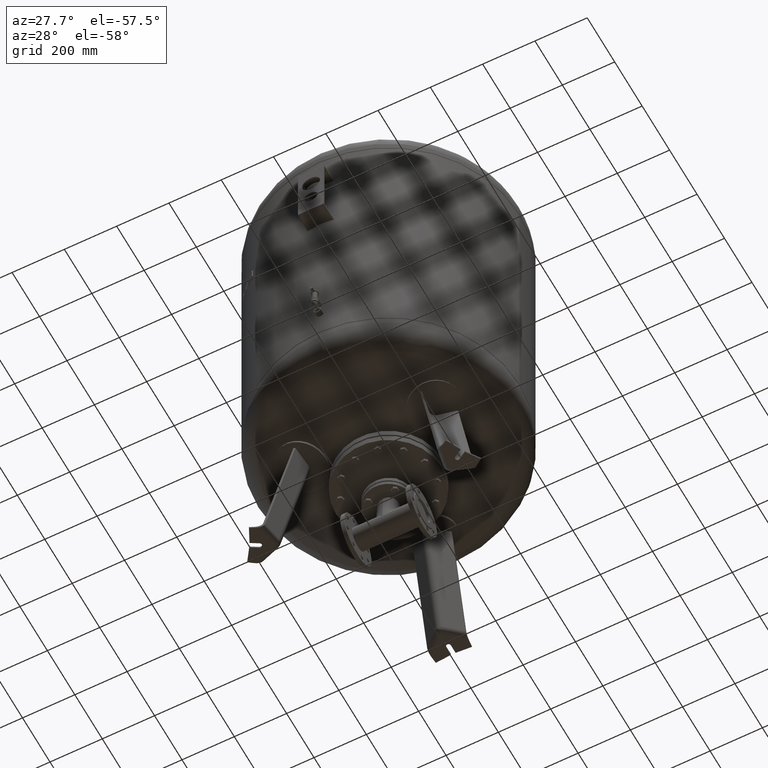
[diagram: clean part render]
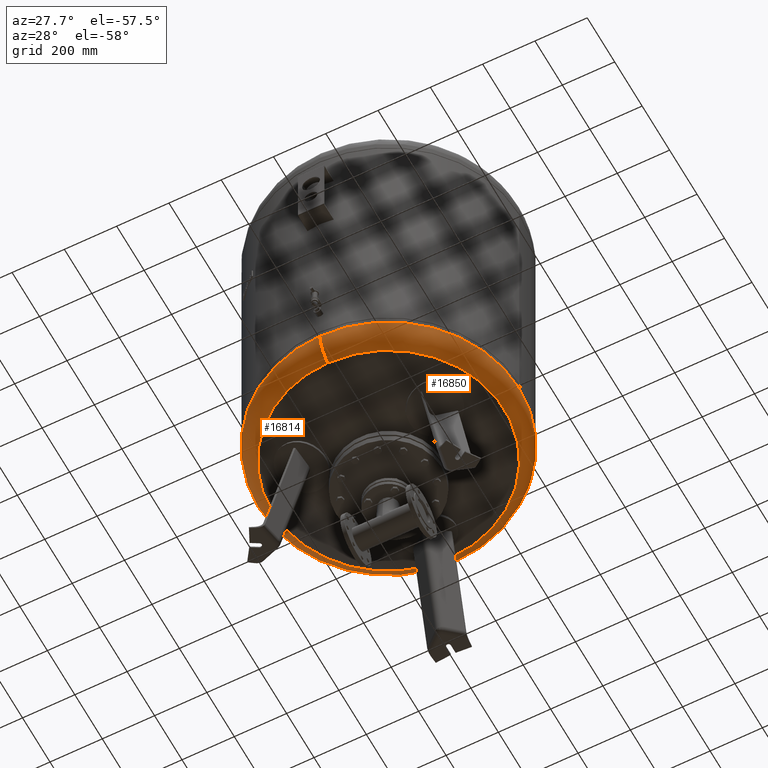
[diagram: same view with one multi-face feature highlighted, each face labeled with its STEP entity id]
A machine part, auxiliary view. The highlighted faces form ONE feature: a constant-radius fillet chain: 2 tangent blend faces with common blend radius 100.6 mm. The faces share edges in the B-rep.
Their STEP definitions:
[1] entity #16814 (Torus):
#16719=CARTESIAN_POINT('',(-500.0,-3.553717E-014,652.455355072719390));
#16720=VERTEX_POINT('',#16719);
#16744=CARTESIAN_POINT('',(-6.123032E-014,499.999999999999940,652.455355072719610));
#16745=VERTEX_POINT('',#16744);
#16753=CARTESIAN_POINT('',(-2.595210E-014,-3.553717E-014,652.455355072719500));
#16754=DIRECTION('',(0.0,0.0,1.0));
#16755=DIRECTION('',(-1.0,0.0,0.0));
#16756=AXIS2_PLACEMENT_3D('',#16753,#16754,#16755);
#16757=CIRCLE('',#16756,500.0);
#16758=EDGE_CURVE('',#16745,#16720,#16757,.T.);
#16763=CARTESIAN_POINT('',(0.0,-3.553717E-014,652.455355072719610));
#16764=DIRECTION('',(-1.341503E-016,-1.836970E-016,1.0));
#16765=DIRECTION('',(0.0,-1.0,0.0));
#16766=AXIS2_PLACEMENT_3D('',#16763,#16764,#16765);
#16767=TOROIDAL_SURFACE('',#16766,399.399999999999920,100.600000000000010);
#16768=CARTESIAN_POINT('',(3.381269E-030,-500.000000000000060,652.455355072719390));
#16769=VERTEX_POINT('',#16768);
#16770=CARTESIAN_POINT('',(1.211146E-014,-443.777777777777600,562.172616747466120));
#16771=VERTEX_POINT('',#16770);
#16772=CARTESIAN_POINT('',(0.0,-399.399999999999980,652.455355072719500));
#16773=DIRECTION('',(1.0,0.0,0.0));
#16774=DIRECTION('',(0.0,-1.0,0.0));
#16775=AXIS2_PLACEMENT_3D('',#16772,#16773,#16774);
#16776=CIRCLE('',#16775,100.600000000000010);
#16777=EDGE_CURVE('',#16769,#16771,#16776,.T.);
#16778=ORIENTED_EDGE('',*,*,#16777,.F.);
#16779=CARTESIAN_POINT('',(-2.595210E-014,-3.553717E-014,652.455355072719500));
#16780=DIRECTION('',(0.0,0.0,1.0));
#16781=DIRECTION('',(-1.0,0.0,0.0));
#16782=AXIS2_PLACEMENT_3D('',#16779,#16780,#16781);
#16783=CIRCLE('',#16782,500.0);
#16784=EDGE_CURVE('',#16720,#16769,#16783,.T.);
#16785=ORIENTED_EDGE('',*,*,#16784,.F.);
#16786=ORIENTED_EDGE('',*,*,#16758,.F.);
#16787=CARTESIAN_POINT('',(-4.223385E-014,443.777777777777600,562.172616747466350));
#16788=VERTEX_POINT('',#16787);
#16789=CARTESIAN_POINT('',(-4.891078E-014,399.399999999999860,652.455355072719730));
#16790=DIRECTION('',(-1.0,0.0,0.0));
#16791=DIRECTION('',(0.0,1.0,0.0));
#16792=AXIS2_PLACEMENT_3D('',#16789,#16790,#16791);
#16793=CIRCLE('',#16792,100.600000000000010);
#16794=EDGE_CURVE('',#16745,#16788,#16793,.T.);
#16795=ORIENTED_EDGE('',*,*,#16794,.T.);
#16796=CARTESIAN_POINT('',(-443.777777777777600,-1.895250E-014,562.172616747466240));
#16797=VERTEX_POINT('',#16796);
#16798=CARTESIAN_POINT('',(-1.384064E-014,-1.895250E-014,562.172616747466240));
#16799=DIRECTION('',(0.0,0.0,1.0));
#16800=DIRECTION('',(-1.0,0.0,0.0));
#16801=AXIS2_PLACEMENT_3D('',#16798,#16799,#16800);
#16802=CIRCLE('',#16801,443.777777777777600);
#16803=EDGE_CURVE('',#16788,#16797,#16802,.T.);
#16804=ORIENTED_EDGE('',*,*,#16803,.T.);
#16805=CARTESIAN_POINT('',(-1.384064E-014,-1.895250E-014,562.172616747466240));
#16806=DIRECTION('',(0.0,0.0,1.0));
#16807=DIRECTION('',(-1.0,0.0,0.0));
#16808=AXIS2_PLACEMENT_3D('',#16805,#16806,#16807);
#16809=CIRCLE('',#16808,443.777777777777600);
#16810=EDGE_CURVE('',#16797,#16771,#16809,.T.);
#16811=ORIENTED_EDGE('',*,*,#16810,.T.);
#16812=EDGE_LOOP('',(#16778,#16785,#16786,#16795,#16804,#16811));
#16813=FACE_OUTER_BOUND('',#16812,.T.);
#16814=ADVANCED_FACE('',(#16813),#16767,.T.);
[2] entity #16850 (Torus):
#16736=CARTESIAN_POINT('',(500.0,2.569315E-014,652.455355072719500));
#16737=VERTEX_POINT('',#16736);
#16744=CARTESIAN_POINT('',(-6.123032E-014,499.999999999999940,652.455355072719610));
#16745=VERTEX_POINT('',#16744);
#16746=CARTESIAN_POINT('',(-2.595210E-014,-3.553717E-014,652.455355072719500));
#16747=DIRECTION('',(0.0,0.0,1.0));
#16748=DIRECTION('',(-1.0,0.0,0.0));
#16749=AXIS2_PLACEMENT_3D('',#16746,#16747,#16748);
#16750=CIRCLE('',#16749,500.0);
#16751=EDGE_CURVE('',#16737,#16745,#16750,.T.);
#16768=CARTESIAN_POINT('',(3.381269E-030,-500.000000000000060,652.455355072719390));
#16769=VERTEX_POINT('',#16768);
#16770=CARTESIAN_POINT('',(1.211146E-014,-443.777777777777600,562.172616747466120));
#16771=VERTEX_POINT('',#16770);
#16772=CARTESIAN_POINT('',(0.0,-399.399999999999980,652.455355072719500));
#16773=DIRECTION('',(1.0,0.0,0.0));
#16774=DIRECTION('',(0.0,-1.0,0.0));
#16775=AXIS2_PLACEMENT_3D('',#16772,#16773,#16774);
#16776=CIRCLE('',#16775,100.600000000000010);
#16777=EDGE_CURVE('',#16769,#16771,#16776,.T.);
#16787=CARTESIAN_POINT('',(-4.223385E-014,443.777777777777600,562.172616747466350));
#16788=VERTEX_POINT('',#16787);
#16789=CARTESIAN_POINT('',(-4.891078E-014,399.399999999999860,652.455355072719730));
#16790=DIRECTION('',(-1.0,0.0,0.0));
#16791=DIRECTION('',(0.0,1.0,0.0));
#16792=AXIS2_PLACEMENT_3D('',#16789,#16790,#16791);
#16793=CIRCLE('',#16792,100.600000000000010);
#16794=EDGE_CURVE('',#16745,#16788,#16793,.T.);
#16822=CARTESIAN_POINT('',(-1.384064E-014,-1.895250E-014,562.172616747466240));
#16823=DIRECTION('',(0.0,0.0,1.0));
#16824=DIRECTION('',(-1.0,0.0,0.0));
#16825=AXIS2_PLACEMENT_3D('',#16822,#16823,#16824);
#16826=CIRCLE('',#16825,443.777777777777600);
#16827=EDGE_CURVE('',#16771,#16788,#16826,.T.);
#16832=CARTESIAN_POINT('',(0.0,-3.553717E-014,652.455355072719610));
#16833=DIRECTION('',(-1.341503E-016,-1.836970E-016,1.0));
#16834=DIRECTION('',(0.0,-1.0,0.0));
#16835=AXIS2_PLACEMENT_3D('',#16832,#16833,#16834);
#16836=TOROIDAL_SURFACE('',#16835,399.399999999999920,100.600000000000010);
#16837=ORIENTED_EDGE('',*,*,#16777,.T.);
#16838=ORIENTED_EDGE('',*,*,#16827,.T.);
#16839=ORIENTED_EDGE('',*,*,#16794,.F.);
#16840=ORIENTED_EDGE('',*,*,#16751,.F.);
#16841=CARTESIAN_POINT('',(-2.595210E-014,-3.553717E-014,652.455355072719500));
#16842=DIRECTION('',(0.0,0.0,1.0));
#16843=DIRECTION('',(-1.0,0.0,0.0));
#16844=AXIS2_PLACEMENT_3D('',#16841,#16842,#16843);
#16845=CIRCLE('',#16844,500.0);
#16846=EDGE_CURVE('',#16769,#16737,#16845,.T.);
#16847=ORIENTED_EDGE('',*,*,#16846,.F.);
#16848=EDGE_LOOP('',(#16837,#16838,#16839,#16840,#16847));
#16849=FACE_OUTER_BOUND('',#16848,.T.);
#16850=ADVANCED_FACE('',(#16849),#16836,.T.);